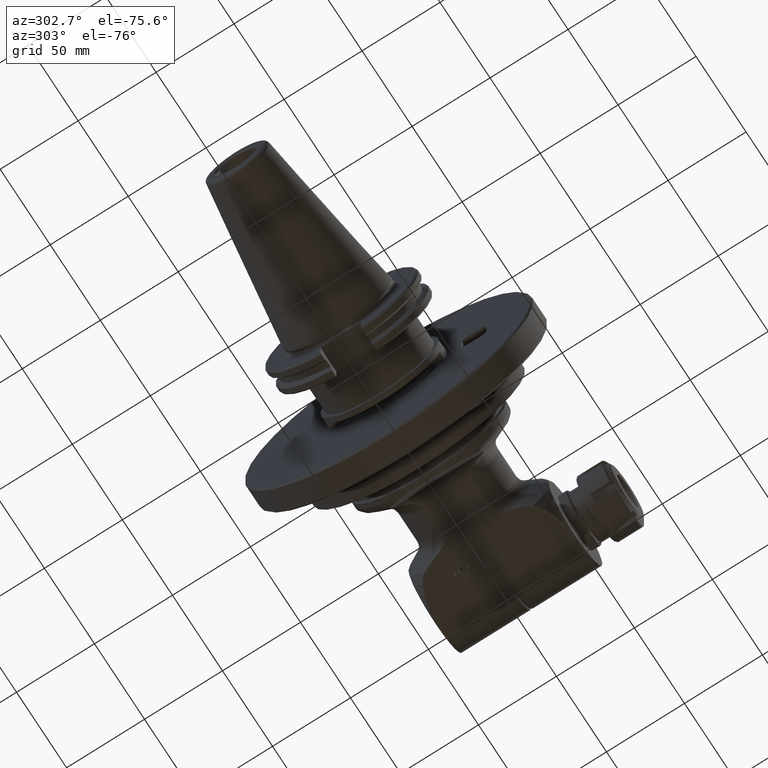
[diagram: clean part render]
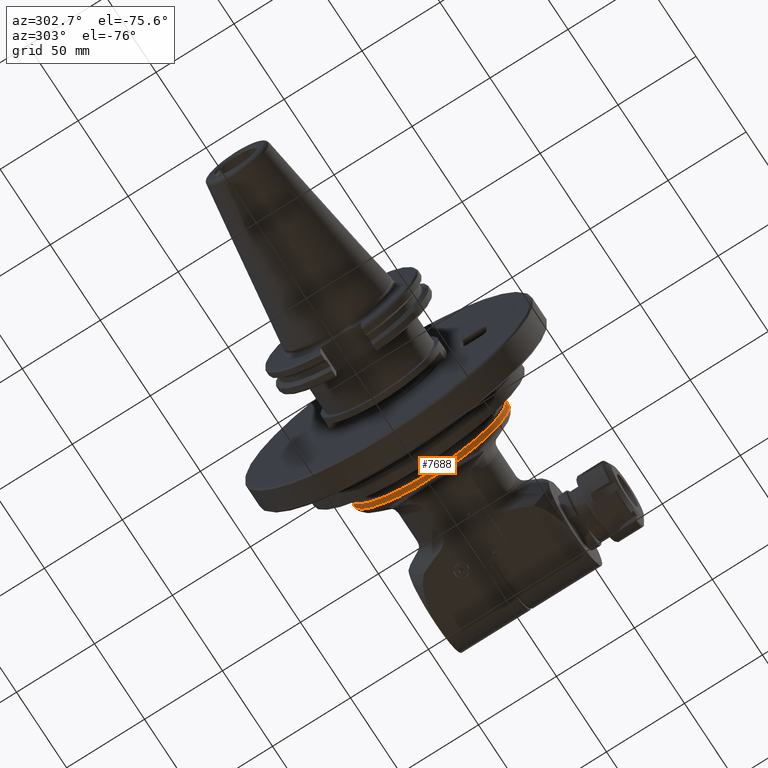
[diagram: same view with one face highlighted and labeled with its STEP entity id]
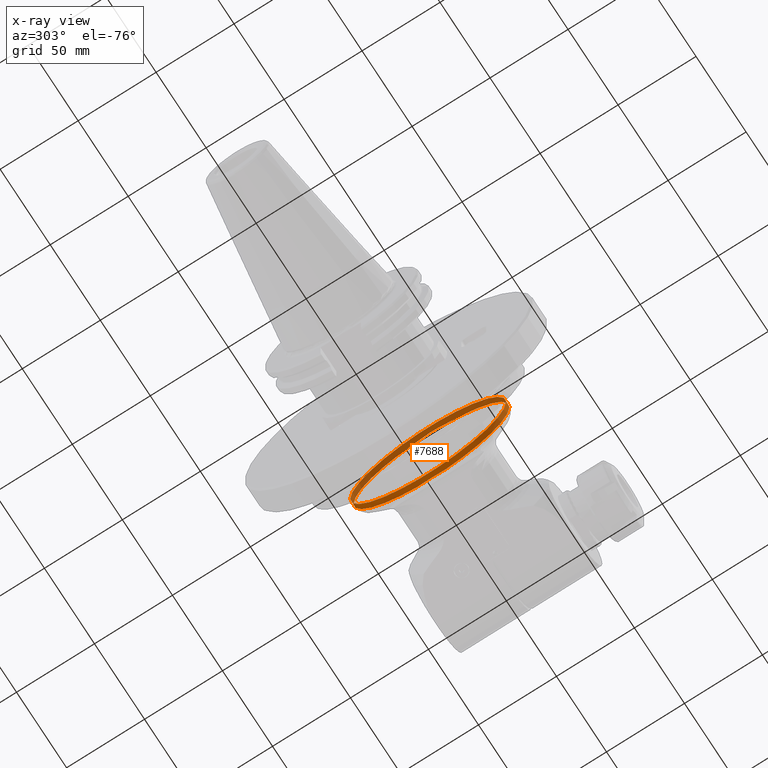
[diagram: x-ray of the same camera — body ghosted, the highlighted face saturated]
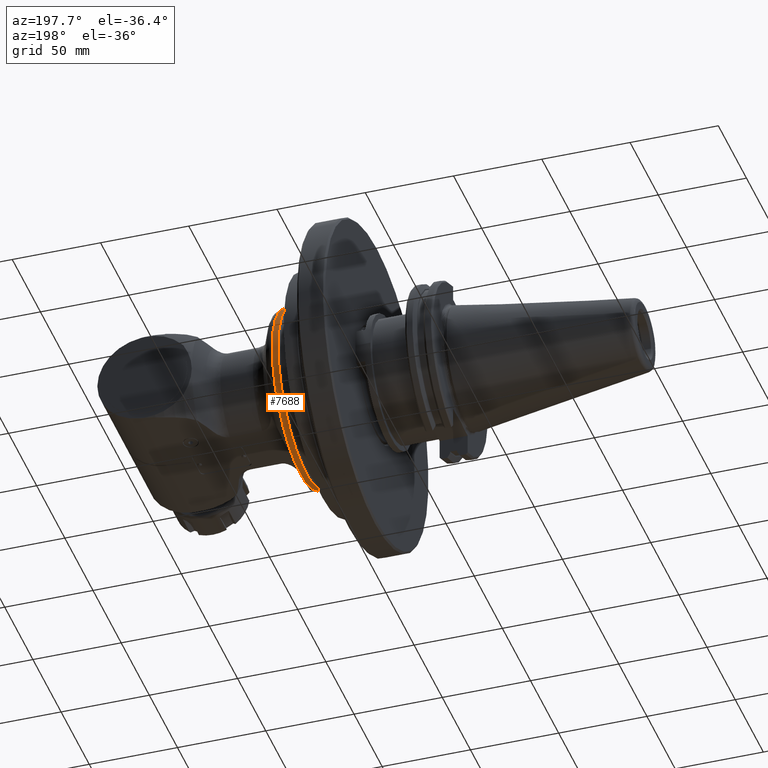
[diagram: same view with one face highlighted and labeled with its STEP entity id]
A machine part, auxiliary view. The second image highlights one B-rep face of the part: STEP entity #7688.
The next image is the same camera in x-ray: the body ghosted, the highlighted face saturated — about 50% of this face is hidden behind the body in this view.
A second angle (auxiliary view) of the same face is appended — the face is thin or edge-on in the first view.
In plain terms, the highlighted cylindrical surface (bore or boss wall) has radius 50 mm, axis along (-1, -0, 0).
Its self-contained STEP definition (entity closure, byte-faithful):
#54=ELLIPSE('',#8276,53.2088886237962,50.);
#57=ELLIPSE('',#8282,53.2088886237962,50.);
#477=CYLINDRICAL_SURFACE('',#8285,50.);
#622=CIRCLE('',#8284,50.);
#623=CIRCLE('',#8286,50.);
#624=CIRCLE('',#8287,50.);
#625=CIRCLE('',#8288,50.);
#626=CIRCLE('',#8289,50.);
#1000=FACE_OUTER_BOUND('',#1485,.T.);
#1485=EDGE_LOOP('',(#5316,#5317,#5318,#5319,#5320,#5321,#5322,#5323,#5324));
#2043=LINE('',#12161,#2609);
#2609=VECTOR('',#9316,50.);
#3245=VERTEX_POINT('',#12068);
#3246=VERTEX_POINT('',#12087);
#3249=VERTEX_POINT('',#12114);
#3250=VERTEX_POINT('',#12133);
#3251=VERTEX_POINT('',#12156);
#3252=VERTEX_POINT('',#12157);
#3253=VERTEX_POINT('',#12160);
#4048=EDGE_CURVE('',#3245,#3246,#54,.T.);
#4054=EDGE_CURVE('',#3249,#3250,#57,.T.);
#4056=EDGE_CURVE('',#3250,#3245,#622,.T.);
#4057=EDGE_CURVE('',#3251,#3252,#623,.T.);
#4058=EDGE_CURVE('',#3252,#3251,#624,.T.);
#4059=EDGE_CURVE('',#3252,#3253,#2043,.T.);
#4060=EDGE_CURVE('',#3246,#3253,#625,.T.);
#4061=EDGE_CURVE('',#3253,#3249,#626,.T.);
#5316=ORIENTED_EDGE('',*,*,#4057,.F.);
#5317=ORIENTED_EDGE('',*,*,#4058,.F.);
#5318=ORIENTED_EDGE('',*,*,#4059,.T.);
#5319=ORIENTED_EDGE('',*,*,#4060,.F.);
#5320=ORIENTED_EDGE('',*,*,#4048,.F.);
#5321=ORIENTED_EDGE('',*,*,#4056,.F.);
#5322=ORIENTED_EDGE('',*,*,#4054,.F.);
#5323=ORIENTED_EDGE('',*,*,#4061,.F.);
#5324=ORIENTED_EDGE('',*,*,#4059,.F.);
#7688=ADVANCED_FACE('',(#1000),#477,.T.);
#8276=AXIS2_PLACEMENT_3D('',#12088,#9292,#9293);
#8282=AXIS2_PLACEMENT_3D('',#12134,#9304,#9305);
#8284=AXIS2_PLACEMENT_3D('',#12154,#9308,#9309);
#8285=AXIS2_PLACEMENT_3D('',#12155,#9310,#9311);
#8286=AXIS2_PLACEMENT_3D('',#12158,#9312,#9313);
#8287=AXIS2_PLACEMENT_3D('',#12159,#9314,#9315);
#8288=AXIS2_PLACEMENT_3D('',#12162,#9317,#9318);
#8289=AXIS2_PLACEMENT_3D('',#12163,#9319,#9320);
#9292=DIRECTION('center_axis',(0.939692620785897,0.,0.342020143325699));
#9293=DIRECTION('ref_axis',(0.342020143325699,0.,-0.939692620785897));
#9304=DIRECTION('center_axis',(0.939692620785897,0.,-0.342020143325699));
#9305=DIRECTION('ref_axis',(-0.342020143325699,0.,-0.939692620785897));
#9308=DIRECTION('center_axis',(1.,0.,0.));
#9309=DIRECTION('ref_axis',(0.,0.187279909699701,-0.982306589320703));
#9310=DIRECTION('center_axis',(-1.,0.,0.));
#9311=DIRECTION('ref_axis',(0.,1.,0.));
#9312=DIRECTION('center_axis',(-1.,0.,0.));
#9313=DIRECTION('ref_axis',(0.,1.,0.));
#9314=DIRECTION('center_axis',(-1.,0.,0.));
#9315=DIRECTION('ref_axis',(0.,1.,0.));
#9316=DIRECTION('',(1.,0.,0.));
#9317=DIRECTION('center_axis',(1.,0.,0.));
#9318=DIRECTION('ref_axis',(0.,-0.1872799096992,0.982306589320798));
#9319=DIRECTION('center_axis',(1.,0.,0.));
#9320=DIRECTION('ref_axis',(0.,-0.1872799096992,0.982306589320798));
#12068=CARTESIAN_POINT('',(14.314648635718,9.363995485014,49.11532946603));
#12087=CARTESIAN_POINT('',(14.314648635728,-9.363995485039,49.11532946603));
#12088=CARTESIAN_POINT('Origin',(32.1911666075327,0.,0.));
#12114=CARTESIAN_POINT('',(14.314648635718,-9.363995484987,-49.11532946603));
#12133=CARTESIAN_POINT('',(14.314648635728,9.36399548502,-49.11532946603));
#12134=CARTESIAN_POINT('Origin',(32.1911666075327,0.,0.));
#12154=CARTESIAN_POINT('Origin',(14.314648635718,0.,0.));
#12155=CARTESIAN_POINT('Origin',(52.606250999998,0.,0.));
#12156=CARTESIAN_POINT('',(10.999999999998,50.,0.));
#12157=CARTESIAN_POINT('',(10.999999999998,-50.,6.12323399573677E-15));
#12158=CARTESIAN_POINT('Origin',(10.999999999998,0.,0.));
#12159=CARTESIAN_POINT('Origin',(10.999999999998,0.,0.));
#12160=CARTESIAN_POINT('',(14.3146486357201,-50.,6.12323399573677E-15));
#12161=CARTESIAN_POINT('',(52.606250999998,-50.,6.12323399573677E-15));
#12162=CARTESIAN_POINT('Origin',(14.314648635718,0.,0.));
#12163=CARTESIAN_POINT('Origin',(14.314648635718,0.,0.));